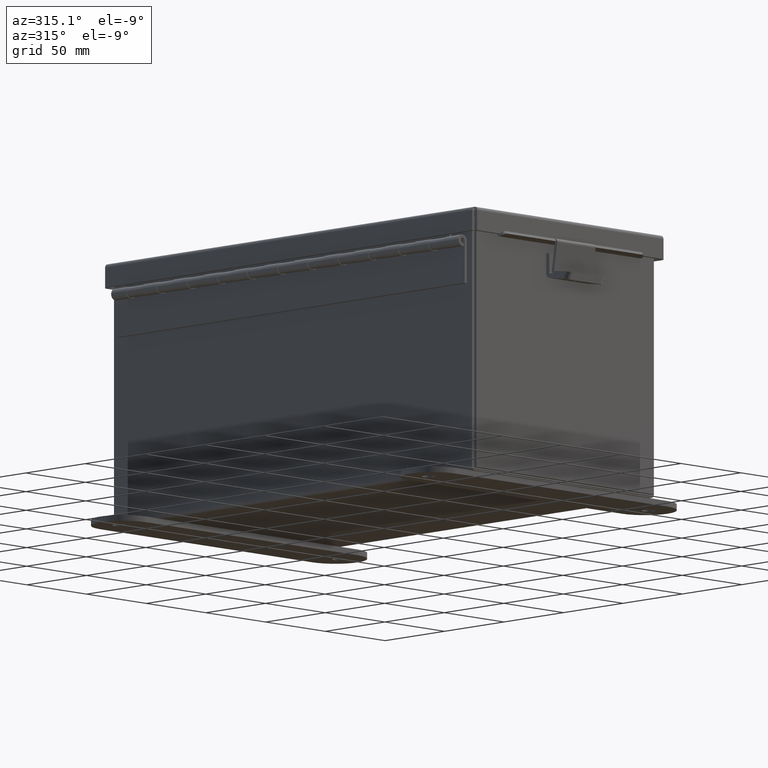
[diagram: clean part render]
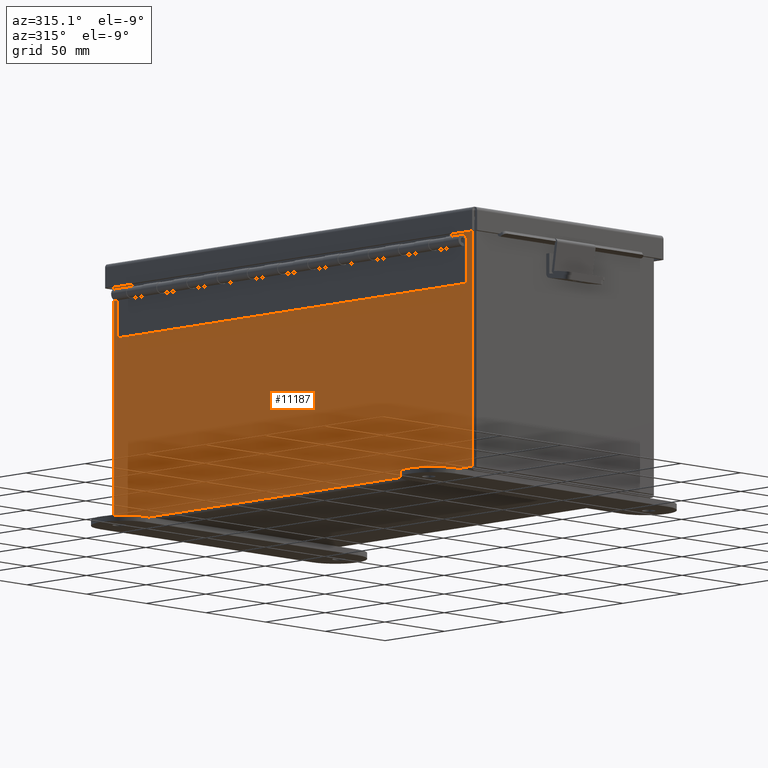
[diagram: same view with one face highlighted and labeled with its STEP entity id]
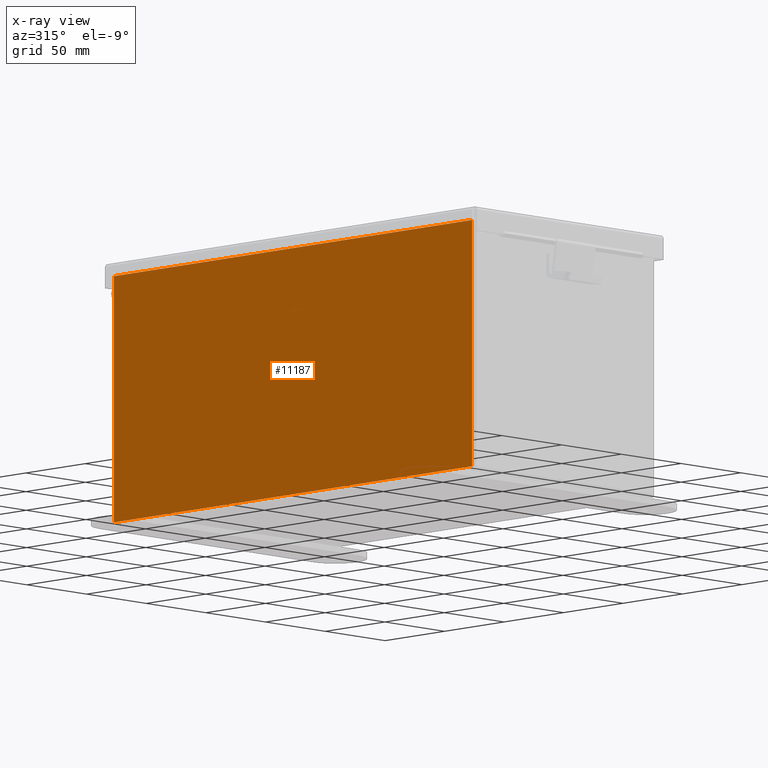
[diagram: x-ray of the same camera — body ghosted, the highlighted face saturated]
A machine part, auxiliary view. The second image highlights one B-rep face of the part: STEP entity #11187.
The next image is the same camera in x-ray: the body ghosted, the highlighted face saturated — about 0% of this face is hidden behind the body in this view.
In plain terms, the highlighted planar face has unit normal (1, 0, 0).
Its self-contained STEP definition (entity closure, byte-faithful):
#107 = CARTESIAN_POINT ( 'NONE',  ( -3.000000000000021800, -5.925299999999997300, 5.837599999999999200 ) ) ;
#1027 = CARTESIAN_POINT ( 'NONE',  ( -3.000000000000021800, -5.925299999999998200, 5.837599999999999200 ) ) ;
#1094 = LINE ( 'NONE', #11197, #9931 ) ;
#1692 = VERTEX_POINT ( 'NONE', #107 ) ;
#2719 = LINE ( 'NONE', #1027, #13008 ) ;
#3007 = VECTOR ( 'NONE', #10650, 39.37007874015748100 ) ;
#3492 = CARTESIAN_POINT ( 'NONE',  ( -3.000000000000000900, -5.925299999999998200, 0.01299999999999929700 ) ) ;
#3690 = LINE ( 'NONE', #8871, #8367 ) ;
#3721 = EDGE_CURVE ( 'NONE', #9618, #7913, #5696, .T. ) ;
#3748 = CARTESIAN_POINT ( 'NONE',  ( -3.000000000000000900, 5.925300000000000000, -1.062859610035002400E-014 ) ) ;
#5696 = LINE ( 'NONE', #3748, #3007 ) ;
#6827 = EDGE_CURVE ( 'NONE', #12245, #1692, #3690, .T. ) ;
#6969 = DIRECTION ( 'NONE',  ( 3.455316574900958600E-015, 0.0000000000000000000, -1.000000000000000000 ) ) ;
#7913 = VERTEX_POINT ( 'NONE', #10039 ) ;
#8081 = DIRECTION ( 'NONE',  ( 1.000000000000000000, 0.0000000000000000000, 3.455316574900958600E-015 ) ) ;
#8367 = VECTOR ( 'NONE', #13493, 39.37007874015748100 ) ;
#8871 = CARTESIAN_POINT ( 'NONE',  ( -3.000000000000000900, -5.925300000000000000, -9.518782852923917600E-015 ) ) ;
#9046 = DIRECTION ( 'NONE',  ( 0.0000000000000000000, 1.000000000000000000, 0.0000000000000000000 ) ) ;
#9341 = ORIENTED_EDGE ( 'NONE', *, *, #12683, .T. ) ;
#9342 = ORIENTED_EDGE ( 'NONE', *, *, #3721, .T. ) ;
#9411 = ORIENTED_EDGE ( 'NONE', *, *, #12598, .F. ) ;
#9618 = VERTEX_POINT ( 'NONE', #10983 ) ;
#9931 = VECTOR ( 'NONE', #12365, 39.37007874015748100 ) ;
#9968 = FACE_OUTER_BOUND ( 'NONE', #11981, .T. ) ;
#10039 = CARTESIAN_POINT ( 'NONE',  ( -3.000000000000000900, 5.925300000000000000, 0.01300000000000006500 ) ) ;
#10650 = DIRECTION ( 'NONE',  ( 3.455316574900958600E-015, 0.0000000000000000000, -1.000000000000000000 ) ) ;
#10983 = CARTESIAN_POINT ( 'NONE',  ( -3.000000000000020900, 5.925300000000000000, 5.837599999999999200 ) ) ;
#11187 = ADVANCED_FACE ( 'NONE', ( #9968 ), #11559, .F. ) ;
#11197 = CARTESIAN_POINT ( 'NONE',  ( -3.000000000000000900, 5.925300000000000000, 0.01299999999999984300 ) ) ;
#11559 = PLANE ( 'NONE',  #13722 ) ;
#11981 = EDGE_LOOP ( 'NONE', ( #9341, #9342, #9411, #12812 ) ) ;
#12245 = VERTEX_POINT ( 'NONE', #3492 ) ;
#12365 = DIRECTION ( 'NONE',  ( -1.593066959076850500E-031, 1.000000000000000000, 4.610480471308228800E-017 ) ) ;
#12598 = EDGE_CURVE ( 'NONE', #12245, #7913, #1094, .T. ) ;
#12683 = EDGE_CURVE ( 'NONE', #1692, #9618, #2719, .T. ) ;
#12733 = CARTESIAN_POINT ( 'NONE',  ( -3.000000000000000900, 0.0000000000000000000, -1.062859610035002400E-014 ) ) ;
#12812 = ORIENTED_EDGE ( 'NONE', *, *, #6827, .T. ) ;
#13008 = VECTOR ( 'NONE', #9046, 39.37007874015748100 ) ;
#13493 = DIRECTION ( 'NONE',  ( -3.455316574900958600E-015, 1.867738689135653700E-016, 1.000000000000000000 ) ) ;
#13722 = AXIS2_PLACEMENT_3D ( 'NONE', #12733, #8081, #6969 ) ;